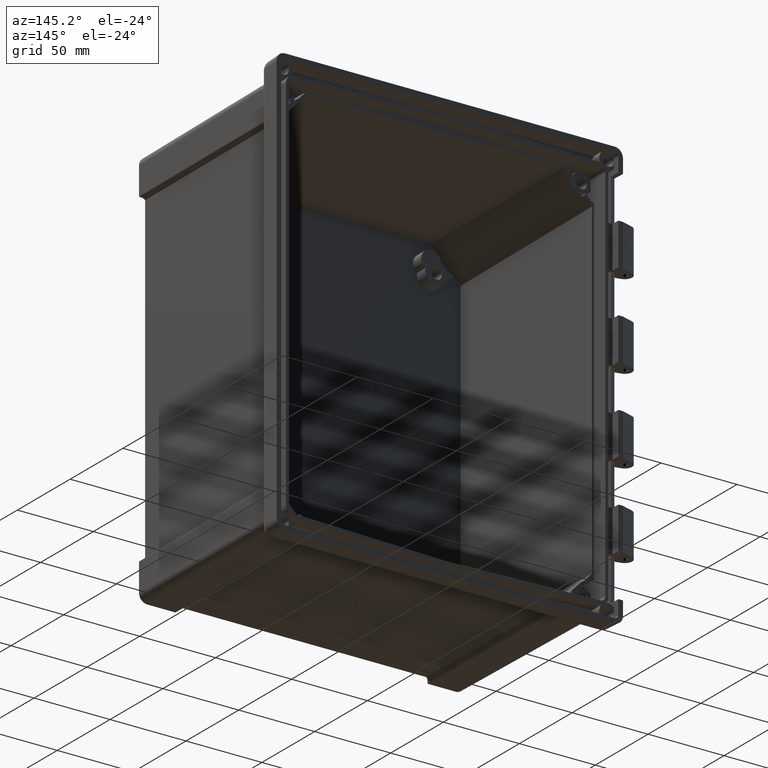
[diagram: clean part render]
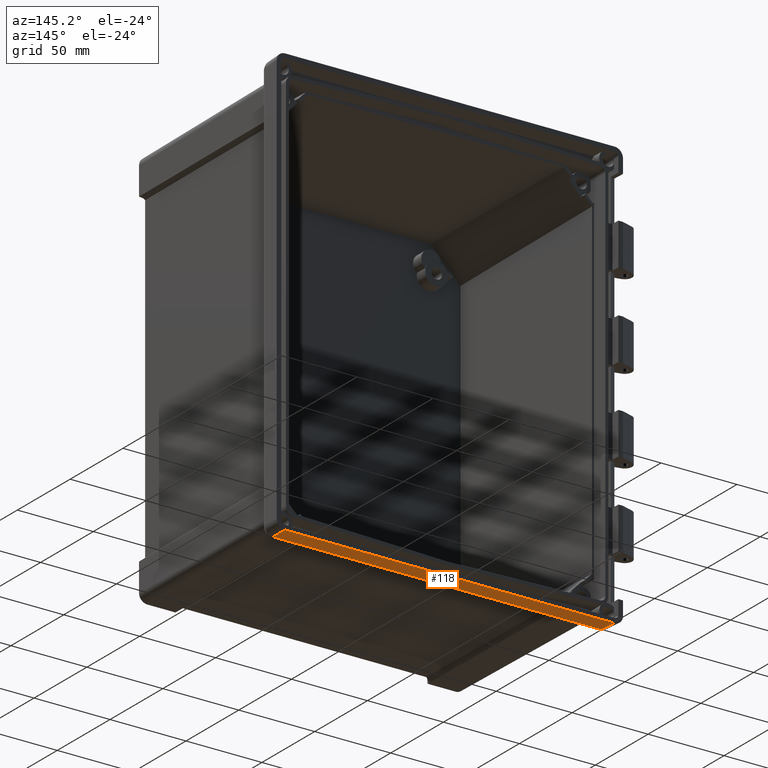
[diagram: same view with one face highlighted and labeled with its STEP entity id]
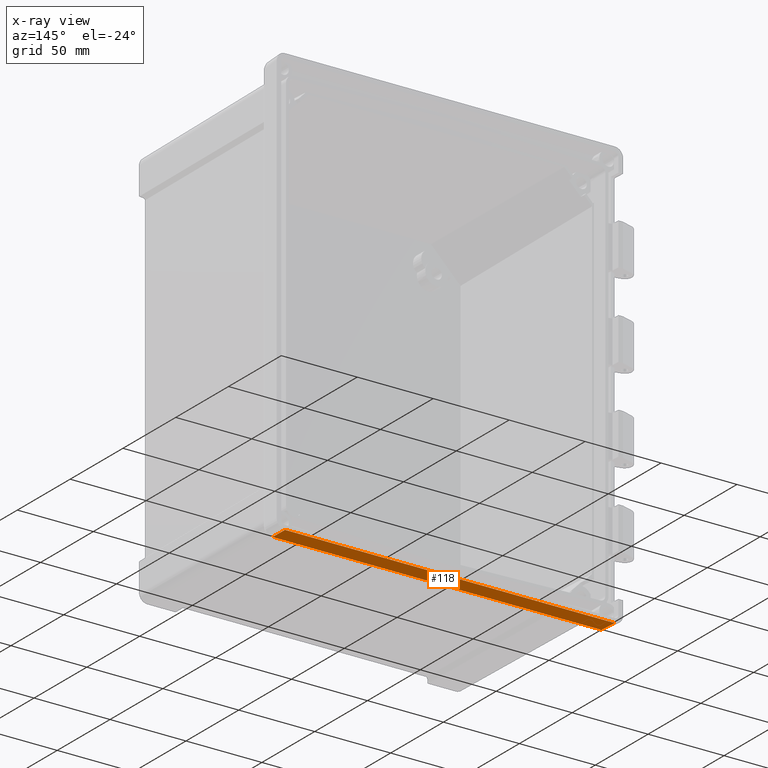
[diagram: x-ray of the same camera — body ghosted, the highlighted face saturated]
A machine part, auxiliary view. The second image highlights one B-rep face of the part: STEP entity #118.
The next image is the same camera in x-ray: the body ghosted, the highlighted face saturated — about 0% of this face is hidden behind the body in this view.
In plain terms, the highlighted planar face has unit normal (0, -0.0349, -0.9994).
Its self-contained STEP definition (entity closure, byte-faithful):
#118 = ADVANCED_FACE ( 'NONE', ( #15751 ), #8290, .T. ) ;
#841 = CARTESIAN_POINT ( 'NONE',  ( -113.9999999999999700, 0.0000000000000000000, -141.0000000000000000 ) ) ;
#1488 =( BOUNDED_CURVE ( )  B_SPLINE_CURVE ( 3, ( #16239, #17716, #17907, #6256 ),
 .UNSPECIFIED., .F., .F. ) 
 B_SPLINE_CURVE_WITH_KNOTS ( ( 4, 4 ),
 ( 4.369878972383721900, 4.428979759933971700 ),
 .UNSPECIFIED. ) 
 CURVE ( )  GEOMETRIC_REPRESENTATION_ITEM ( )  RATIONAL_B_SPLINE_CURVE ( ( 1.000000000000000000, 0.9997089459231631700, 0.9997089459231631700, 1.000000000000000000 ) ) 
 REPRESENTATION_ITEM ( '' )  );
#1594 = CARTESIAN_POINT ( 'NONE',  ( 108.0841330161456000, -12.00481665641616000, -140.5807825647505400 ) ) ;
#1744 = CARTESIAN_POINT ( 'NONE',  ( 107.4169962001153600, -12.03358521635234100, -140.5797779445004500 ) ) ;
#2199 =( BOUNDED_CURVE ( )  B_SPLINE_CURVE ( 3, ( #1594, #1744, #11836, #13297 ),
 .UNSPECIFIED., .F., .F. ) 
 B_SPLINE_CURVE_WITH_KNOTS ( ( 4, 4 ),
 ( 1.854205547245614700, 1.913306334795867000 ),
 .UNSPECIFIED. ) 
 CURVE ( )  GEOMETRIC_REPRESENTATION_ITEM ( )  RATIONAL_B_SPLINE_CURVE ( ( 1.000000000000000000, 0.9997089459231631700, 0.9997089459231631700, 1.000000000000000000 ) ) 
 REPRESENTATION_ITEM ( '' )  );
#2513 = DIRECTION ( 'NONE',  ( -1.000000000000000000, -1.122791238963837400E-019, -1.217310598968979400E-016 ) ) ;
#2776 = LINE ( 'NONE', #8762, #16992 ) ;
#3253 = VERTEX_POINT ( 'NONE', #15666 ) ;
#3445 = DIRECTION ( 'NONE',  ( 1.000000000000000000, 0.0000000000000000000, 1.217349807703022600E-016 ) ) ;
#3925 = VERTEX_POINT ( 'NONE', #9323 ) ;
#3926 = VERTEX_POINT ( 'NONE', #11922 ) ;
#4168 = ORIENTED_EDGE ( 'NONE', *, *, #11409, .T. ) ;
#4184 = VERTEX_POINT ( 'NONE', #18222 ) ;
#4811 = VECTOR ( 'NONE', #14601, 1000.000000000000000 ) ;
#5543 = EDGE_CURVE ( 'NONE', #7605, #3926, #5796, .T. ) ;
#5796 = LINE ( 'NONE', #13823, #17937 ) ;
#6256 = CARTESIAN_POINT ( 'NONE',  ( -108.0841330161455600, -12.00481665641615900, -140.5807825647505600 ) ) ;
#7146 = EDGE_LOOP ( 'NONE', ( #18704, #7245, #7797, #4168, #13145, #17473 ) ) ;
#7150 = VERTEX_POINT ( 'NONE', #15502 ) ;
#7245 = ORIENTED_EDGE ( 'NONE', *, *, #9228, .T. ) ;
#7416 = DIRECTION ( 'NONE',  ( -0.03487826274237470400, -0.9987827659587182900, 0.03487826274237468300 ) ) ;
#7605 = VERTEX_POINT ( 'NONE', #9880 ) ;
#7662 = EDGE_CURVE ( 'NONE', #4184, #7605, #17432, .T. ) ;
#7797 = ORIENTED_EDGE ( 'NONE', *, *, #16932, .T. ) ;
#8017 = AXIS2_PLACEMENT_3D ( 'NONE', #841, #15432, #14083 ) ;
#8290 = PLANE ( 'NONE',  #8017 ) ;
#8762 = CARTESIAN_POINT ( 'NONE',  ( 108.2326766359400700, -7.751083936420836400, -140.7293261845450200 ) ) ;
#8829 = LINE ( 'NONE', #12592, #18916 ) ;
#8917 = CARTESIAN_POINT ( 'NONE',  ( -108.5100370882591700, 0.1914802268545352200, -141.0066866368642000 ) ) ;
#9228 = EDGE_CURVE ( 'NONE', #3925, #3253, #2199, .T. ) ;
#9323 = CARTESIAN_POINT ( 'NONE',  ( 108.0841330161456000, -12.00481665641616000, -140.5807825647505400 ) ) ;
#9880 = CARTESIAN_POINT ( 'NONE',  ( -108.5033504513949500, 0.0000000000000000000, -141.0000000000000000 ) ) ;
#11409 = EDGE_CURVE ( 'NONE', #7150, #4184, #1488, .T. ) ;
#11836 = CARTESIAN_POINT ( 'NONE',  ( 106.7523976832278500, -12.04797577896830200, -140.5792754149804600 ) ) ;
#11922 = CARTESIAN_POINT ( 'NONE',  ( 108.5033504513949900, 0.0000000000000000000, -140.9999999999999700 ) ) ;
#12592 = CARTESIAN_POINT ( 'NONE',  ( -113.9999999999999700, -12.04797577896829900, -140.5792754149804600 ) ) ;
#13145 = ORIENTED_EDGE ( 'NONE', *, *, #7662, .T. ) ;
#13297 = CARTESIAN_POINT ( 'NONE',  ( 106.0909177678065200, -12.04797577896829900, -140.5792754149804300 ) ) ;
#13823 = CARTESIAN_POINT ( 'NONE',  ( -113.9999999999999700, 0.0000000000000000000, -141.0000000000000000 ) ) ;
#14083 = DIRECTION ( 'NONE',  ( 0.0000000000000000000, 0.9993908270190956500, -0.03489949670250104600 ) ) ;
#14601 = DIRECTION ( 'NONE',  ( -0.03487826274237470400, 0.9987827659587182900, -0.03487826274237469700 ) ) ;
#15432 = DIRECTION ( 'NONE',  ( 1.216608231091861100E-016, -0.03489949670250105200, -0.9993908270190957600 ) ) ;
#15502 = CARTESIAN_POINT ( 'NONE',  ( -106.0909177678065600, -12.04797577896829900, -140.5792754149804600 ) ) ;
#15666 = CARTESIAN_POINT ( 'NONE',  ( 106.0909177678065200, -12.04797577896829900, -140.5792754149804300 ) ) ;
#15751 = FACE_OUTER_BOUND ( 'NONE', #7146, .T. ) ;
#16239 = CARTESIAN_POINT ( 'NONE',  ( -106.0909177678065600, -12.04797577896829900, -140.5792754149804600 ) ) ;
#16932 = EDGE_CURVE ( 'NONE', #3253, #7150, #8829, .T. ) ;
#16992 = VECTOR ( 'NONE', #7416, 1000.000000000000000 ) ;
#17432 = LINE ( 'NONE', #8917, #4811 ) ;
#17473 = ORIENTED_EDGE ( 'NONE', *, *, #5543, .T. ) ;
#17716 = CARTESIAN_POINT ( 'NONE',  ( -106.7523976832278800, -12.04797577896829000, -140.5792754149804900 ) ) ;
#17907 = CARTESIAN_POINT ( 'NONE',  ( -107.4169962001153600, -12.03358521635233700, -140.5797779445004800 ) ) ;
#17937 = VECTOR ( 'NONE', #3445, 1000.000000000000000 ) ;
#18222 = CARTESIAN_POINT ( 'NONE',  ( -108.0841330161455600, -12.00481665641615900, -140.5807825647505600 ) ) ;
#18704 = ORIENTED_EDGE ( 'NONE', *, *, #18739, .T. ) ;
#18739 = EDGE_CURVE ( 'NONE', #3926, #3925, #2776, .T. ) ;
#18916 = VECTOR ( 'NONE', #2513, 1000.000000000000000 ) ;